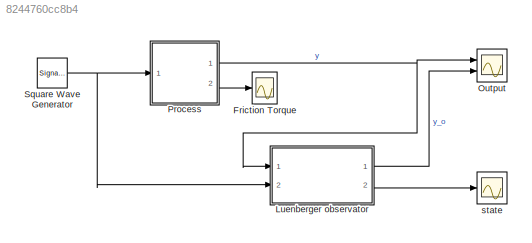
MODEL slx_8244760cc8b4
KIND model
CONFIG AbsTol = auto
CONFIG EnableMultiTasking = off
CONFIG FixedStep = auto
CONFIG MaxStep = auto
CONFIG MinStep = auto
CONFIG RelTol = 1e-3
CONFIG SampleTimeConstraint = Unconstrained
CONFIG Solver = VariableStepAuto
CONFIG SolverName = VariableStepAuto
CONFIG StartTime = 0.0
CONFIG StopTime = 20.0
BLOCK [Scope] Friction Torque
  Floating = off
  NumInputPorts = 1
  Ports = [1]
  ScopeSpecificationString = Simulink.scopes.TimeScopeBlockCfg('CurrentConfiguration', extmgr.ConfigurationSet(extmgr.Configuration('Core','General UI',true),extmgr.Configuration('Core','Source UI',true),extmgr.Configuration('Sources','WiredSimulink',true,'DataLoggingVariableName','ScopeData1'),extmgr.Configuration('Visuals','Time Domain',true,'SerializedDisplays',{struct('MinYLimReal','-3.75','MaxYLimReal','3.75','YLabelReal...<+1480ch>
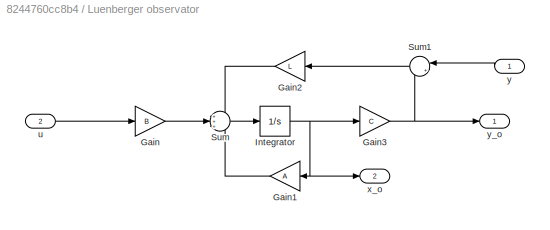
BLOCK [SubSystem] Luenberger observator
  Ports = [2, 2]
  RequestExecContextInheritance = off
BLOCK [Gain] Luenberger observator/Gain
  Gain = B
  Multiplication = Matrix(K*u)
  OutDataTypeStr = Inherit: Inherit via internal rule
  ParamDataTypeStr = Inherit: Inherit via internal rule
  SaturateOnIntegerOverflow = off
BLOCK [Gain] Luenberger observator/Gain1
  Gain = A
  Multiplication = Matrix(K*u)
  OutDataTypeStr = Inherit: Inherit via internal rule
  ParamDataTypeStr = Inherit: Inherit via internal rule
  SaturateOnIntegerOverflow = off
BLOCK [Gain] Luenberger observator/Gain2
  Gain = L
  Multiplication = Matrix(K*u)
  OutDataTypeStr = Inherit: Inherit via internal rule
  ParamDataTypeStr = Inherit: Inherit via internal rule
  SaturateOnIntegerOverflow = off
BLOCK [Gain] Luenberger observator/Gain3
  Gain = C
  Multiplication = Matrix(K*u)
  OutDataTypeStr = Inherit: Inherit via internal rule
  ParamDataTypeStr = Inherit: Inherit via internal rule
  SaturateOnIntegerOverflow = off
BLOCK [Integrator] Luenberger observator/Integrator
  Ports = [1, 1]
BLOCK [Sum] Luenberger observator/Sum
  IconShape = round
  InputSameDT = off
  Inputs = +++
  OutDataTypeStr = Inherit: Inherit via internal rule
  Ports = [3, 1]
  SaturateOnIntegerOverflow = off
BLOCK [Sum] Luenberger observator/Sum1
  IconShape = round
  InputSameDT = off
  Inputs = |+-
  OutDataTypeStr = Inherit: Inherit via internal rule
  Ports = [2, 1]
  SaturateOnIntegerOverflow = off
BLOCK [Inport] Luenberger observator/u
  IconDisplay = Port number
  Port = 2
BLOCK [Outport] Luenberger observator/x_o
  IconDisplay = Port number
  Port = 2
BLOCK [Inport] Luenberger observator/y
  IconDisplay = Port number
BLOCK [Outport] Luenberger observator/y_o
  IconDisplay = Port number
BLOCK [Scope] Output
  Floating = off
  NumInputPorts = 2
  Ports = [2]
  ScopeSpecificationString = Simulink.scopes.TimeScopeBlockCfg('CurrentConfiguration', extmgr.ConfigurationSet(extmgr.Configuration('Core','General UI',true),extmgr.Configuration('Core','Source UI',true),extmgr.Configuration('Sources','WiredSimulink',true),extmgr.Configuration('Visuals','Time Domain',true,'SerializedDisplays',{struct('MinYLimReal','-316.50188','MaxYLimReal','81.80884','YLabelReal','','MinYLimMag',' 0.00000','...<+1496ch>
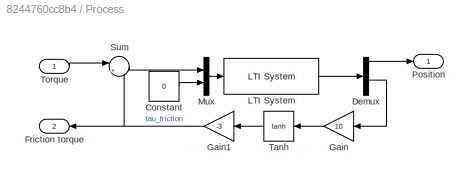
BLOCK [SubSystem] Process
  Ports = [1, 2]
  RequestExecContextInheritance = off
BLOCK [Constant] Process/Constant
  Value = 0
BLOCK [Demux] Process/Demux
  DisplayOption = bar
  Ports = [1, 4]
BLOCK [Outport] Process/Friction torque
  IconDisplay = Port number
  Port = 2
BLOCK [Gain] Process/Gain
  Gain = 10
  OutDataTypeStr = Inherit: Inherit via internal rule
  ParamDataTypeStr = Inherit: Inherit via internal rule
  SaturateOnIntegerOverflow = off
BLOCK [Gain] Process/Gain1
  Gain = -3
  OutDataTypeStr = Inherit: Inherit via internal rule
  ParamDataTypeStr = Inherit: Inherit via internal rule
  SaturateOnIntegerOverflow = off
BLOCK [Reference] Process/LTI System  REF=cstblocks/LTI System
  Ports = [1, 1]
  SourceBlock = cstblocks/LTI System
  SourceProductBaseCode = CT
  SourceProductName = Control System Toolbox
  SourceType = LTI Block
BLOCK [Mux] Process/Mux
  DisplayOption = bar
  Inputs = 2
  Ports = [2, 1]
BLOCK [Outport] Process/Position
  IconDisplay = Port number
BLOCK [Sum] Process/Sum
  IconShape = round
  InputSameDT = off
  Inputs = |++
  OutDataTypeStr = Inherit: Inherit via internal rule
  Ports = [2, 1]
  SaturateOnIntegerOverflow = off
BLOCK [Trigonometry] Process/Tanh
  Operator = tanh
  Ports = [1, 1]
BLOCK [Inport] Process/Torque
  IconDisplay = Port number
BLOCK [SignalGenerator] Square Wave Generator
  Amplitude = 4
  Frequency = 0.5
  Ports = [0, 1]
  Units = rad/sec
  WaveForm = square
BLOCK [Scope] state
  Floating = off
  NumInputPorts = 1
  Ports = [1]
  ScopeSpecificationString = Simulink.scopes.TimeScopeBlockCfg('CurrentConfiguration', extmgr.ConfigurationSet(extmgr.Configuration('Core','General UI',true),extmgr.Configuration('Core','Source UI',true),extmgr.Configuration('Sources','WiredSimulink',true,'DataLoggingVariableName','ScopeData1'),extmgr.Configuration('Visuals','Time Domain',true,'SerializedDisplays',{struct('MinYLimReal','-1030.81729','MaxYLimReal','1028.66921'...<+1490ch>
LINE Luenberger observator/Gain1:1 -> Luenberger observator/Sum:3
LINE Luenberger observator/Gain2:1 -> Luenberger observator/Sum:1
NET Luenberger observator/Gain3:1 -> Luenberger observator/Sum1:2, Luenberger observator/y_o:1
LINE Luenberger observator/Gain:1 -> Luenberger observator/Sum:2
NET Luenberger observator/Integrator:1 -> Luenberger observator/Gain1:1, Luenberger observator/Gain3:1, Luenberger observator/x_o:1
LINE Luenberger observator/Sum1:1 -> Luenberger observator/Gain2:1
LINE Luenberger observator/Sum:1 -> Luenberger observator/Integrator:1
LINE Luenberger observator/u:1 -> Luenberger observator/Gain:1
LINE Luenberger observator/y:1 -> Luenberger observator/Sum1:1
LINE Luenberger observator:1 -> Output:2
LINE Luenberger observator:2 -> state:1
LINE Process/Constant:1 -> Process/Mux:2
LINE Process/Demux:1 -> Process/Position:1
LINE Process/Demux:3 -> Process/Gain:1
NET Process/Gain1:1 -> Process/Friction torque:1, Process/Sum:2
LINE Process/Gain:1 -> Process/Tanh:1
LINE Process/LTI System:1 -> Process/Demux:1
LINE Process/Mux:1 -> Process/LTI System:1
LINE Process/Sum:1 -> Process/Mux:1
LINE Process/Tanh:1 -> Process/Gain1:1
LINE Process/Torque:1 -> Process/Sum:1
NET Process:1 -> Luenberger observator:1, Output:1
LINE Process:2 -> Friction Torque:1
NET Square Wave Generator:1 -> Luenberger observator:2, Process:1
note: NET lines group one-source signal fan-out (src -> all destinations, sorted); 1:1 wires keep LINE
